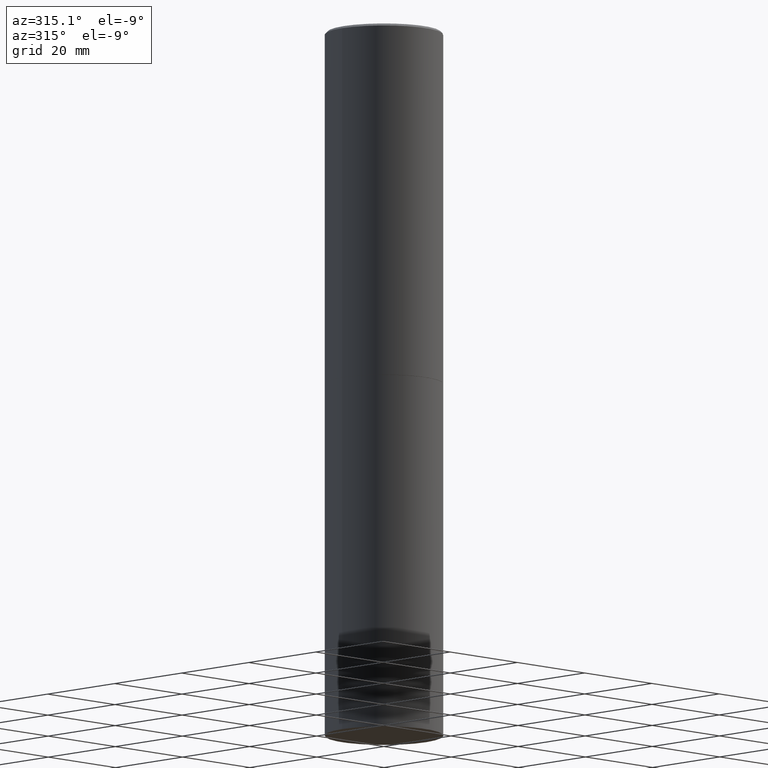
[diagram: clean part render]
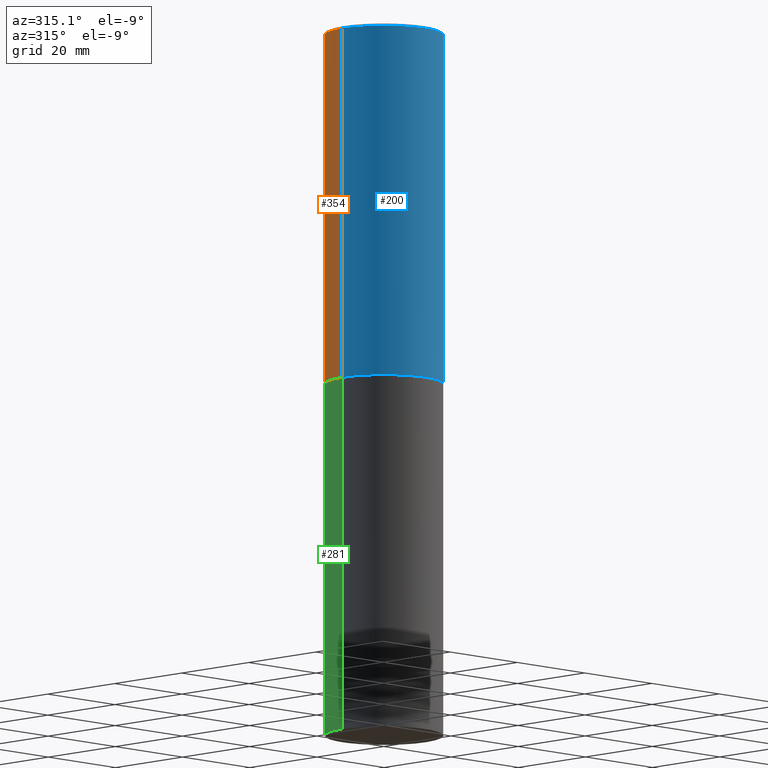
[diagram: same view with three faces highlighted in distinct colors, each labeled with its STEP entity id]
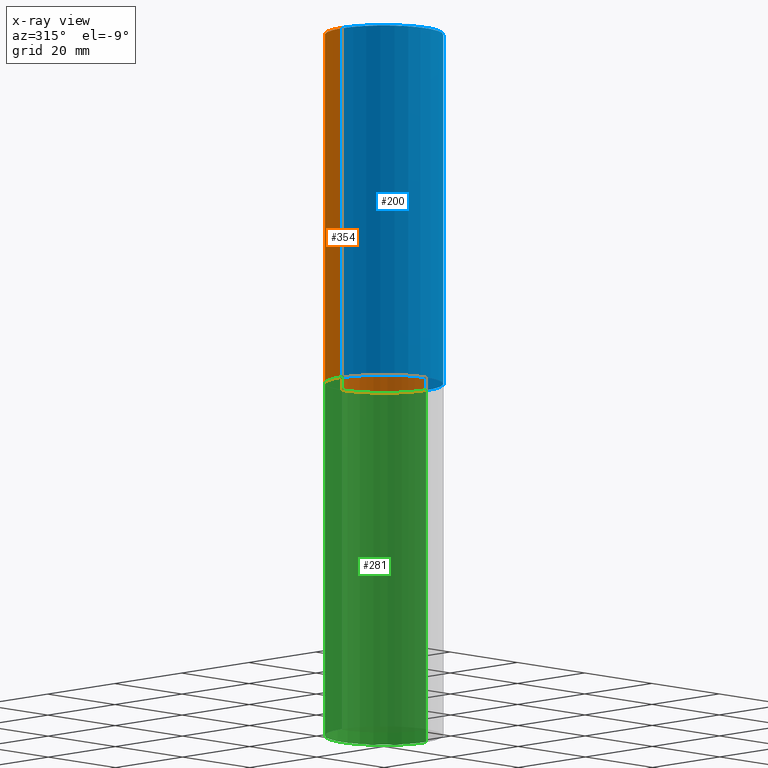
[diagram: x-ray of the same camera — body ghosted, the three highlighted faces saturated]
A machine part, auxiliary view with three faces highlighted in distinct colors.
The next image is the same camera in x-ray (body ghosted, the three faces saturated) — at least one of them is partly hidden behind the body in this view.
Their STEP definitions:

[orange] entity #354 — the highlighted cylindrical surface (partial cylindrical patch) has radius 12.5006 mm, axis along (-0, 0, 1).
#6 = CARTESIAN_POINT ( 'NONE',  ( 7.218290275216666916E-29, -1.030580546786331359E-14, -2.951700000000000212 ) ) ;
#20 = ORIENTED_EDGE ( 'NONE', *, *, #246, .T. ) ;
#38 = VECTOR ( 'NONE', #94, 39.37007874015748143 ) ;
#53 = AXIS2_PLACEMENT_3D ( 'NONE', #6, #96, #179 ) ;
#61 = FACE_OUTER_BOUND ( 'NONE', #245, .T. ) ;
#70 = VERTEX_POINT ( 'NONE', #306 ) ;
#82 = CIRCLE ( 'NONE', #116, 0.4921499999999996988 ) ;
#92 = CARTESIAN_POINT ( 'NONE',  ( 0.4921499999999999764, -1.374247054968660936E-14, -2.951700000000000212 ) ) ;
#94 = DIRECTION ( 'NONE',  ( -2.445468806185136877E-29, 3.491481338843145188E-15, 1.000000000000000000 ) ) ;
#96 = DIRECTION ( 'NONE',  ( -2.445468806185136597E-29, 3.491481338843145583E-15, 1.000000000000000000 ) ) ;
#116 = AXIS2_PLACEMENT_3D ( 'NONE', #232, #145, #288 ) ;
#135 = VERTEX_POINT ( 'NONE', #364 ) ;
#136 = DIRECTION ( 'NONE',  ( -2.445468806185136877E-29, 3.491481338843145188E-15, 1.000000000000000000 ) ) ;
#141 = EDGE_CURVE ( 'NONE', #323, #135, #228, .T. ) ;
#145 = DIRECTION ( 'NONE',  ( -2.445468806185136597E-29, 3.491481338843145583E-15, 1.000000000000000000 ) ) ;
#147 = DIRECTION ( 'NONE',  ( -2.445468806185136597E-29, 3.491481338843145583E-15, 1.000000000000000000 ) ) ;
#176 = CARTESIAN_POINT ( 'NONE',  ( -0.4921499999999998098, 3.496936074043331714E-15, -2.420853904668950949E-29 ) ) ;
#179 = DIRECTION ( 'NONE',  ( 1.000000000000000000, -6.982962677686265922E-15, 0.000000000000000000 ) ) ;
#190 = VERTEX_POINT ( 'NONE', #335 ) ;
#194 = CARTESIAN_POINT ( 'NONE',  ( 0.4921499999999998098, -3.436665081823294593E-15, 2.399810400207968762E-29 ) ) ;
#201 = CYLINDRICAL_SURFACE ( 'NONE', #210, 0.4921499999999998098 ) ;
#207 = LINE ( 'NONE', #176, #38 ) ;
#210 = AXIS2_PLACEMENT_3D ( 'NONE', #261, #147, #263 ) ;
#223 = VECTOR ( 'NONE', #136, 39.37007874015748143 ) ;
#228 = LINE ( 'NONE', #194, #223 ) ;
#232 = CARTESIAN_POINT ( 'NONE',  ( 4.890937612370299433E-31, -6.982962677686328587E-17, -0.02000000000000010797 ) ) ;
#245 = EDGE_LOOP ( 'NONE', ( #20, #356, #285, #273 ) ) ;
#246 = EDGE_CURVE ( 'NONE', #323, #70, #254, .T. ) ;
#254 = CIRCLE ( 'NONE', #53, 0.4921499999999999764 ) ;
#261 = CARTESIAN_POINT ( 'NONE',  ( 0.000000000000000000, 0.000000000000000000, 0.000000000000000000 ) ) ;
#263 = DIRECTION ( 'NONE',  ( 1.000000000000000000, -6.982962677686265922E-15, 4.876176775795935793E-29 ) ) ;
#273 = ORIENTED_EDGE ( 'NONE', *, *, #141, .F. ) ;
#285 = ORIENTED_EDGE ( 'NONE', *, *, #298, .F. ) ;
#288 = DIRECTION ( 'NONE',  ( 1.000000000000000000, -6.982962677686265922E-15, 0.000000000000000000 ) ) ;
#298 = EDGE_CURVE ( 'NONE', #135, #190, #82, .T. ) ;
#305 = EDGE_CURVE ( 'NONE', #70, #190, #207, .T. ) ;
#306 = CARTESIAN_POINT ( 'NONE',  ( -0.4921499999999999764, -1.690881473276754954E-15, -2.951700000000000212 ) ) ;
#323 = VERTEX_POINT ( 'NONE', #92 ) ;
#335 = CARTESIAN_POINT ( 'NONE',  ( -0.4921499999999996988, 3.366835455046430506E-15, -0.02000000000000010797 ) ) ;
#354 = ADVANCED_FACE ( 'NONE', ( #61 ), #201, .T. ) ;
#356 = ORIENTED_EDGE ( 'NONE', *, *, #305, .T. ) ;
#364 = CARTESIAN_POINT ( 'NONE',  ( 0.4921499999999996988, -3.446223716380120377E-15, -0.02000000000000010797 ) ) ;

[blue] entity #200 — the highlighted cylindrical surface (partial cylindrical patch) has radius 12.5006 mm, axis along (-0, 0, 1).
#3 = CARTESIAN_POINT ( 'NONE',  ( 7.218290275216666916E-29, -1.030580546786331359E-14, -2.951700000000000212 ) ) ;
#26 = AXIS2_PLACEMENT_3D ( 'NONE', #3, #221, #81 ) ;
#28 = EDGE_CURVE ( 'NONE', #190, #135, #127, .T. ) ;
#38 = VECTOR ( 'NONE', #94, 39.37007874015748143 ) ;
#42 = ORIENTED_EDGE ( 'NONE', *, *, #170, .T. ) ;
#70 = VERTEX_POINT ( 'NONE', #306 ) ;
#81 = DIRECTION ( 'NONE',  ( 1.000000000000000000, -6.982962677686265922E-15, 0.000000000000000000 ) ) ;
#83 = CYLINDRICAL_SURFACE ( 'NONE', #218, 0.4921499999999998098 ) ;
#92 = CARTESIAN_POINT ( 'NONE',  ( 0.4921499999999999764, -1.374247054968660936E-14, -2.951700000000000212 ) ) ;
#94 = DIRECTION ( 'NONE',  ( -2.445468806185136877E-29, 3.491481338843145188E-15, 1.000000000000000000 ) ) ;
#127 = CIRCLE ( 'NONE', #276, 0.4921499999999996988 ) ;
#135 = VERTEX_POINT ( 'NONE', #364 ) ;
#136 = DIRECTION ( 'NONE',  ( -2.445468806185136877E-29, 3.491481338843145188E-15, 1.000000000000000000 ) ) ;
#141 = EDGE_CURVE ( 'NONE', #323, #135, #228, .T. ) ;
#170 = EDGE_CURVE ( 'NONE', #70, #323, #348, .T. ) ;
#176 = CARTESIAN_POINT ( 'NONE',  ( -0.4921499999999998098, 3.496936074043331714E-15, -2.420853904668950949E-29 ) ) ;
#190 = VERTEX_POINT ( 'NONE', #335 ) ;
#192 = ORIENTED_EDGE ( 'NONE', *, *, #28, .F. ) ;
#194 = CARTESIAN_POINT ( 'NONE',  ( 0.4921499999999998098, -3.436665081823294593E-15, 2.399810400207968762E-29 ) ) ;
#195 = DIRECTION ( 'NONE',  ( -2.445468806185136597E-29, 3.491481338843145583E-15, 1.000000000000000000 ) ) ;
#200 = ADVANCED_FACE ( 'NONE', ( #338 ), #83, .T. ) ;
#207 = LINE ( 'NONE', #176, #38 ) ;
#218 = AXIS2_PLACEMENT_3D ( 'NONE', #310, #366, #236 ) ;
#221 = DIRECTION ( 'NONE',  ( -2.445468806185136597E-29, 3.491481338843145583E-15, 1.000000000000000000 ) ) ;
#223 = VECTOR ( 'NONE', #136, 39.37007874015748143 ) ;
#228 = LINE ( 'NONE', #194, #223 ) ;
#236 = DIRECTION ( 'NONE',  ( 1.000000000000000000, -6.982962677686265922E-15, 4.876176775795935793E-29 ) ) ;
#248 = EDGE_LOOP ( 'NONE', ( #359, #42, #353, #192 ) ) ;
#276 = AXIS2_PLACEMENT_3D ( 'NONE', #311, #195, #339 ) ;
#305 = EDGE_CURVE ( 'NONE', #70, #190, #207, .T. ) ;
#306 = CARTESIAN_POINT ( 'NONE',  ( -0.4921499999999999764, -1.690881473276754954E-15, -2.951700000000000212 ) ) ;
#310 = CARTESIAN_POINT ( 'NONE',  ( 0.000000000000000000, 0.000000000000000000, 0.000000000000000000 ) ) ;
#311 = CARTESIAN_POINT ( 'NONE',  ( 4.890937612370299433E-31, -6.982962677686328587E-17, -0.02000000000000010797 ) ) ;
#323 = VERTEX_POINT ( 'NONE', #92 ) ;
#335 = CARTESIAN_POINT ( 'NONE',  ( -0.4921499999999996988, 3.366835455046430506E-15, -0.02000000000000010797 ) ) ;
#338 = FACE_OUTER_BOUND ( 'NONE', #248, .T. ) ;
#339 = DIRECTION ( 'NONE',  ( 1.000000000000000000, -6.982962677686265922E-15, 0.000000000000000000 ) ) ;
#348 = CIRCLE ( 'NONE', #26, 0.4921499999999999764 ) ;
#353 = ORIENTED_EDGE ( 'NONE', *, *, #141, .T. ) ;
#359 = ORIENTED_EDGE ( 'NONE', *, *, #305, .F. ) ;
#364 = CARTESIAN_POINT ( 'NONE',  ( 0.4921499999999996988, -3.446223716380120377E-15, -0.02000000000000010797 ) ) ;
#366 = DIRECTION ( 'NONE',  ( -2.445468806185136597E-29, 3.491481338843145583E-15, 1.000000000000000000 ) ) ;

[green] entity #281 — the highlighted cylindrical surface (partial cylindrical patch) has radius 12.5006 mm, axis along (-0, 0, 1).
#13 = ORIENTED_EDGE ( 'NONE', *, *, #343, .T. ) ;
#23 = DIRECTION ( 'NONE',  ( 1.000000000000000000, -6.982962677686265922E-15, 0.000000000000000000 ) ) ;
#32 = VECTOR ( 'NONE', #118, 39.37007874015748143 ) ;
#33 = CARTESIAN_POINT ( 'NONE',  ( 0.4921499999999999764, -3.436665081823295777E-15, 2.399810400207969603E-29 ) ) ;
#35 = CARTESIAN_POINT ( 'NONE',  ( 0.000000000000000000, 0.000000000000000000, 0.000000000000000000 ) ) ;
#40 = EDGE_CURVE ( 'NONE', #160, #46, #337, .T. ) ;
#46 = VERTEX_POINT ( 'NONE', #193 ) ;
#62 = CARTESIAN_POINT ( 'NONE',  ( 1.444171603492632270E-28, -2.061894304653819197E-14, -5.905499999999999972 ) ) ;
#65 = CYLINDRICAL_SURFACE ( 'NONE', #300, 0.4921499999999999764 ) ;
#118 = DIRECTION ( 'NONE',  ( -2.445468806185136877E-29, 3.491481338843145188E-15, 1.000000000000000000 ) ) ;
#129 = ORIENTED_EDGE ( 'NONE', *, *, #316, .T. ) ;
#138 = CARTESIAN_POINT ( 'NONE',  ( -0.4921499999999999764, -1.196718392382684217E-14, -5.905499999999999972 ) ) ;
#146 = DIRECTION ( 'NONE',  ( -2.445468806185136597E-29, 3.491481338843145583E-15, 1.000000000000000000 ) ) ;
#151 = DIRECTION ( 'NONE',  ( -2.445468806185136597E-29, 3.491481338843145583E-15, 1.000000000000000000 ) ) ;
#154 = VERTEX_POINT ( 'NONE', #138 ) ;
#160 = VERTEX_POINT ( 'NONE', #257 ) ;
#166 = CIRCLE ( 'NONE', #199, 0.4921499999999999764 ) ;
#180 = LINE ( 'NONE', #345, #292 ) ;
#193 = CARTESIAN_POINT ( 'NONE',  ( -0.4921499999999999764, -1.196718392382684217E-14, -2.952700000000000102 ) ) ;
#199 = AXIS2_PLACEMENT_3D ( 'NONE', #62, #146, #291 ) ;
#204 = LINE ( 'NONE', #33, #32 ) ;
#206 = EDGE_CURVE ( 'NONE', #329, #160, #204, .T. ) ;
#220 = EDGE_LOOP ( 'NONE', ( #13, #129, #275, #258 ) ) ;
#257 = CARTESIAN_POINT ( 'NONE',  ( 0.4921499999999999764, -1.374596203102545079E-14, -2.952700000000000102 ) ) ;
#258 = ORIENTED_EDGE ( 'NONE', *, *, #206, .F. ) ;
#275 = ORIENTED_EDGE ( 'NONE', *, *, #40, .F. ) ;
#278 = CARTESIAN_POINT ( 'NONE',  ( 7.220735744022852519E-29, -1.030929694920215502E-14, -2.952700000000000102 ) ) ;
#281 = ADVANCED_FACE ( 'NONE', ( #342 ), #65, .T. ) ;
#289 = DIRECTION ( 'NONE',  ( -2.445468806185136877E-29, 3.491481338843145188E-15, 1.000000000000000000 ) ) ;
#291 = DIRECTION ( 'NONE',  ( 1.000000000000000000, -6.982962677686265922E-15, 0.000000000000000000 ) ) ;
#292 = VECTOR ( 'NONE', #289, 39.37007874015748143 ) ;
#300 = AXIS2_PLACEMENT_3D ( 'NONE', #35, #151, #318 ) ;
#316 = EDGE_CURVE ( 'NONE', #154, #46, #180, .T. ) ;
#318 = DIRECTION ( 'NONE',  ( 1.000000000000000000, -6.982962677686265922E-15, 4.876176775795935793E-29 ) ) ;
#329 = VERTEX_POINT ( 'NONE', #346 ) ;
#337 = CIRCLE ( 'NONE', #341, 0.4921499999999999764 ) ;
#340 = DIRECTION ( 'NONE',  ( -2.445468806185136597E-29, 3.491481338843145583E-15, 1.000000000000000000 ) ) ;
#341 = AXIS2_PLACEMENT_3D ( 'NONE', #278, #340, #23 ) ;
#342 = FACE_OUTER_BOUND ( 'NONE', #220, .T. ) ;
#343 = EDGE_CURVE ( 'NONE', #329, #154, #166, .T. ) ;
#345 = CARTESIAN_POINT ( 'NONE',  ( -0.4921499999999999764, 3.496936074043332897E-15, -2.420853904668951509E-29 ) ) ;
#346 = CARTESIAN_POINT ( 'NONE',  ( 0.4921499999999999764, -2.405560812836148932E-14, -5.905499999999999972 ) ) ;